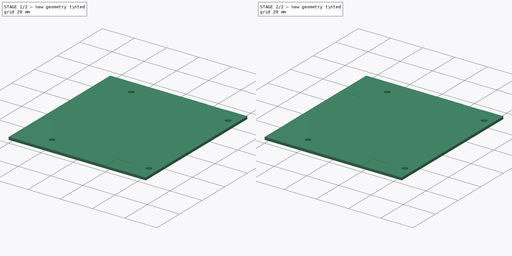
[diagram: build sequence overview — one tinted view per stage of 2, left to right]
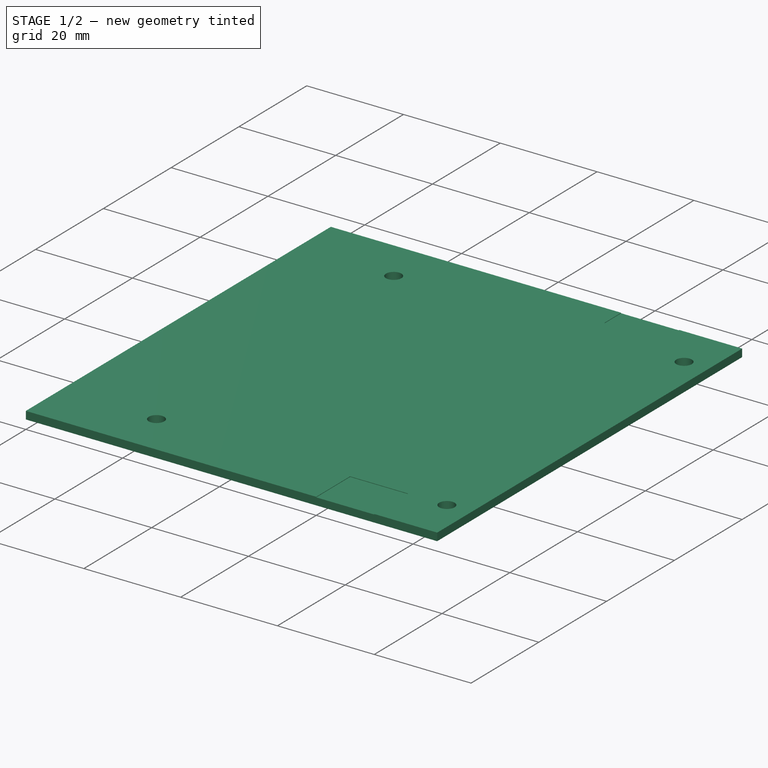
[diagram: stage 1 of 2 — iso view after this stage's code; geometry added in this stage tinted green]
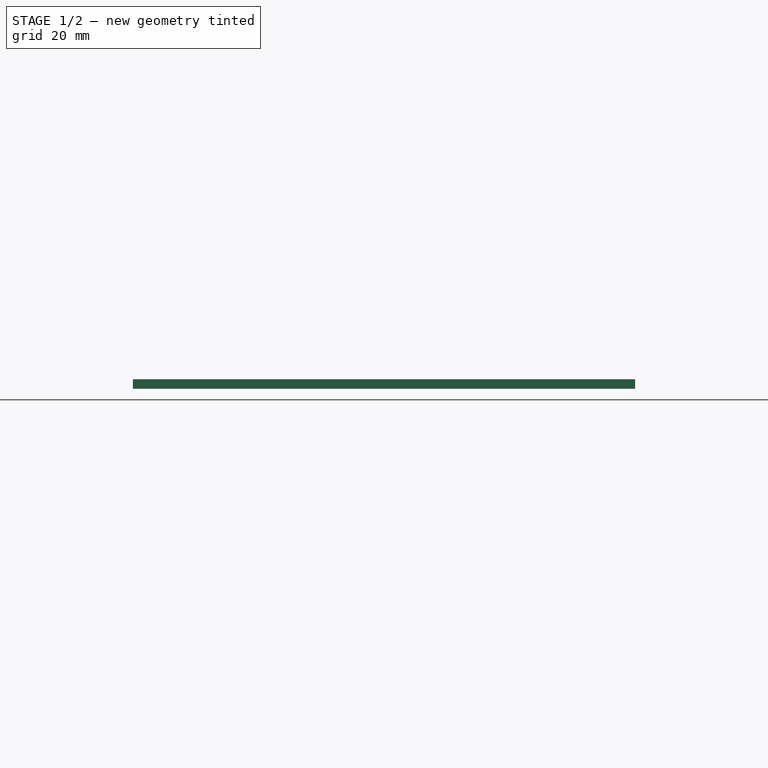
[diagram: stage 1 of 2 — front view after this stage's code; geometry added in this stage tinted green]
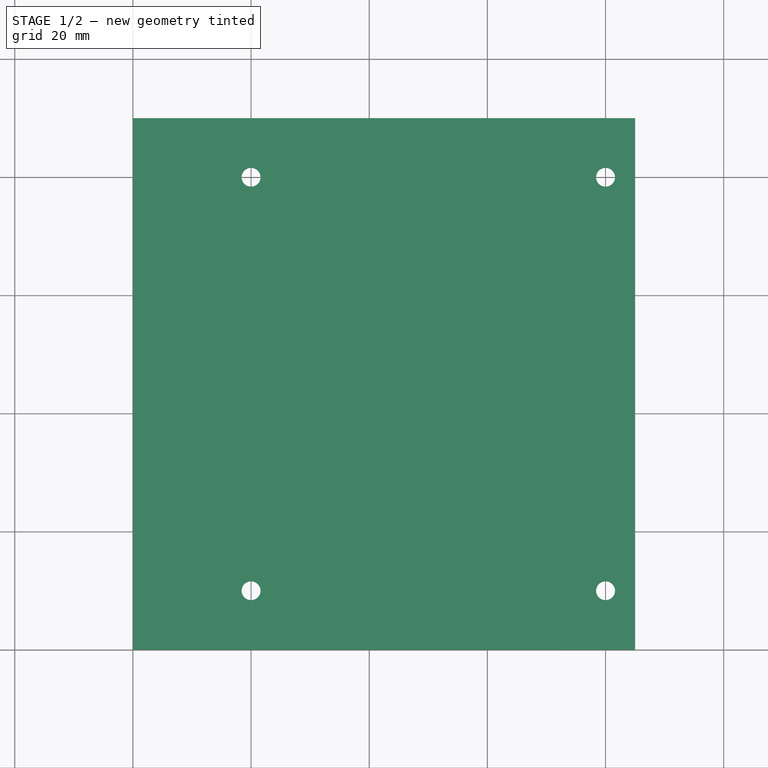
[diagram: stage 1 of 2 — top view after this stage's code; geometry added in this stage tinted green]
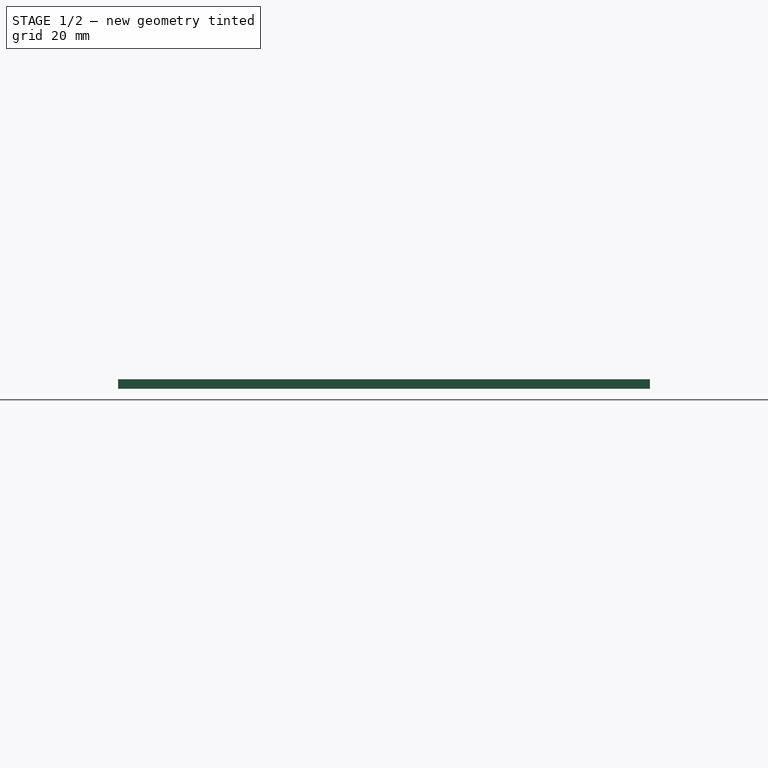
[diagram: stage 1 of 2 — right view after this stage's code; geometry added in this stage tinted green]
FCSTD DOCUMENT  (FreeCAD 0.20R29603 (Git))
Label: 2
License: All rights reserved
LicenseURL: http://en.wikipedia.org/wiki/All_rights_reserved
objects: Sketcher::SketchObject×3, PartDesign::Pocket×2, PartDesign::Pad×1, PartDesign::Body×1, App::Part×1
note: 10 computed .brp shape members not serialized (recipe doc carries the construction recipe); baked Part::Feature solids carry a one-line shape summary decoded from their .brp

FEATURE [Sketcher::SketchObject] Sketch
  FullyConstrained = true
  MapMode = 5
  Support = -> [XY_Plane001]
  sketch-geometry (8):
    g0: LineSegment StartX=0 StartY=0 StartZ=0 EndX=85 EndY=0 EndZ=0
    g1: LineSegment StartX=85 StartY=0 StartZ=0 EndX=85 EndY=90 EndZ=0
    g2: LineSegment StartX=85 StartY=90 StartZ=0 EndX=0 EndY=90 EndZ=0
    g3: LineSegment StartX=0 StartY=90 StartZ=0 EndX=0 EndY=0 EndZ=0
    g4: Circle CenterX=20 CenterY=80 CenterZ=0 NormalX=0 NormalY=0 NormalZ=1 AngleXU=0 Radius=1.6
    g5: Circle CenterX=20 CenterY=10 CenterZ=0 NormalX=0 NormalY=0 NormalZ=1 AngleXU=0 Radius=1.6
    g6: Circle CenterX=80 CenterY=10 CenterZ=0 NormalX=0 NormalY=0 NormalZ=1 AngleXU=0 Radius=1.6
    g7: Circle CenterX=80 CenterY=80 CenterZ=0 NormalX=0 NormalY=0 NormalZ=1 AngleXU=0 Radius=1.6
  constraints (23):
    c: Coincident(g0,g1)
    c: Coincident(g1,g2)
    c: Coincident(g2,g3)
    c: Coincident(g3,g0)
    c: Horizontal(g0)
    c: Horizontal(g2)
    c: Vertical(g1)
    c: Vertical(g3)
    c: DistanceY(g3,g3) = 90
    c: DistanceX(g2,g2) = 85
    c: Coincident(g0,g-1)
    c: Radius(g7) = 1.6
    c: Radius(g4) = 1.6
    c: Radius(g5) = 1.6
    c: Radius(g6) = 1.6
    c: Distance(g5,g0) = 10
    c: Distance(g6,g0) = 10
    c: Distance(g6,g1) = 5
    c: Distance(g7,g1) = 5
    c: Distance(g7,g2) = 10
    c: Distance(g4,g2) = 10
    c: Distance(g4,g3) = 20
    c: Distance(g5,g3) = 20
FEATURE [PartDesign::Pad] Pad
  AllowMultiFace = false
  Direction = (0,0,1)
  Length = 1.6
  Length2 = 100
  Profile = -> Sketch
  Type = 0
FEATURE [Sketcher::SketchObject] Sketch001
  FullyConstrained = false
  MapMode = 5
  Placement = pos=(0,0,1.6) rot=(0,0,1;0rad)
  Support = -> [Pad]
  sketch-geometry (4):
    g0: LineSegment StartX=12.0199 StartY=19.2308 StartZ=0 EndX=0.0199282 EndY=19.2308 EndZ=0
    g1: LineSegment StartX=0.0199282 StartY=19.2308 StartZ=0 EndX=0.0199282 EndY=67.2308 EndZ=0
    g2: LineSegment StartX=0.0199282 StartY=67.2308 StartZ=0 EndX=12.0199 EndY=67.2308 EndZ=0
    g3: LineSegment StartX=12.0199 StartY=67.2308 StartZ=0 EndX=12.0199 EndY=19.2308 EndZ=0
  constraints (10):
    c: Coincident(g0,g1)
    c: Coincident(g1,g2)
    c: Coincident(g2,g3)
    c: Coincident(g3,g0)
    c: Horizontal(g0)
    c: Horizontal(g2)
    c: Vertical(g1)
    c: Vertical(g3)
    c: DistanceX(g2,g2) = 12
    c: DistanceY(g1,g1) = 48
FEATURE [Sketcher::SketchObject] Sketch002
  FullyConstrained = true
  MapMode = 5
  Placement = pos=(0,0,1.6) rot=(0,0,1;0rad)
  sketch-geometry (8):
    g0: LineSegment StartX=60 StartY=97 StartZ=0 EndX=72 EndY=97 EndZ=0
    g1: LineSegment StartX=72 StartY=97 StartZ=0 EndX=72 EndY=85 EndZ=0
    g2: LineSegment StartX=72 StartY=85 StartZ=0 EndX=60 EndY=85 EndZ=0
    g3: LineSegment StartX=60 StartY=85 StartZ=0 EndX=60 EndY=97 EndZ=0
    g4: LineSegment StartX=60 StartY=10 StartZ=0 EndX=72 EndY=10 EndZ=0
    g5: LineSegment StartX=72 StartY=10 StartZ=0 EndX=72 EndY=0 EndZ=0
    g6: LineSegment StartX=72 StartY=0 StartZ=0 EndX=60 EndY=0 EndZ=0
    g7: LineSegment StartX=60 StartY=0 StartZ=0 EndX=60 EndY=10 EndZ=0
  constraints (24):
    c: Coincident(g0,g1)
    c: Coincident(g1,g2)
    c: Coincident(g2,g3)
    c: Coincident(g3,g0)
    c: Horizontal(g0)
    c: Horizontal(g2)
    c: Vertical(g1)
    c: Vertical(g3)
    c: Coincident(g4,g5)
    c: Coincident(g5,g6)
    c: Coincident(g6,g7)
    c: Coincident(g7,g4)
    c: Horizontal(g4)
    c: Horizontal(g6)
    c: Vertical(g5)
    c: Vertical(g7)
    c: DistanceY(g3,g3) = 12
    c: DistanceY(g7,g7) = 10
    c: DistanceX(g0,g0) = 12
    c: DistanceX(g4,g4) = 12
    c: DistanceY(g-1,g2) = 85
    c: DistanceX(g-2,g2) = 60
    c: DistanceX(g-2,g6) = 60
    c: DistanceY(g-1,g6) = 0
FEATURE [PartDesign::Pocket] Pocket
  BaseFeature = -> Pad
  Direction = (0,0,-1)
  Length = 0.1
  Length2 = 5
  Profile = -> Sketch002
  ReferenceAxis = -> Sketch002 [N_Axis]
  Type = 0
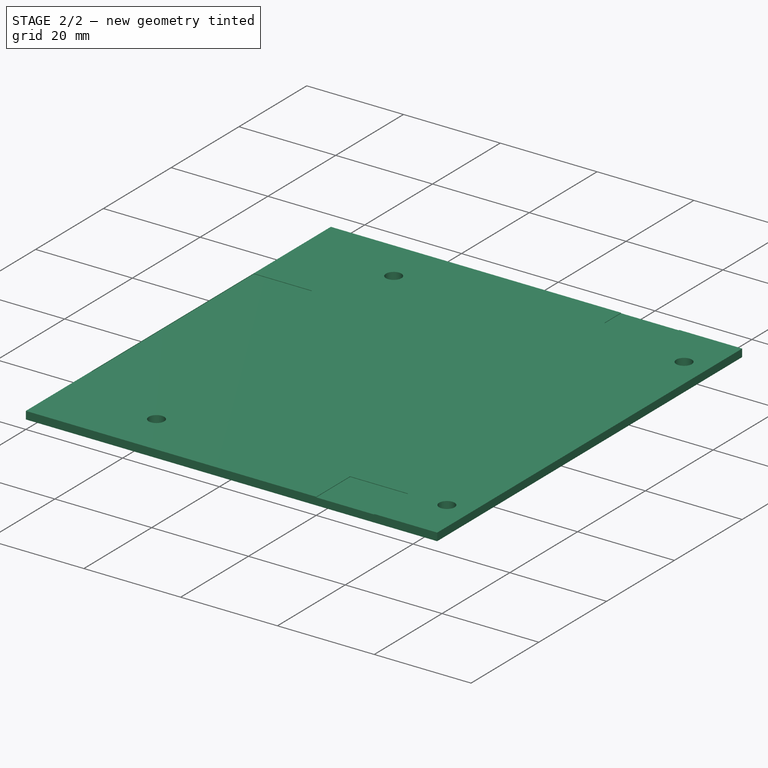
[diagram: stage 2 of 2 — iso view after this stage's code; geometry added in this stage tinted green]
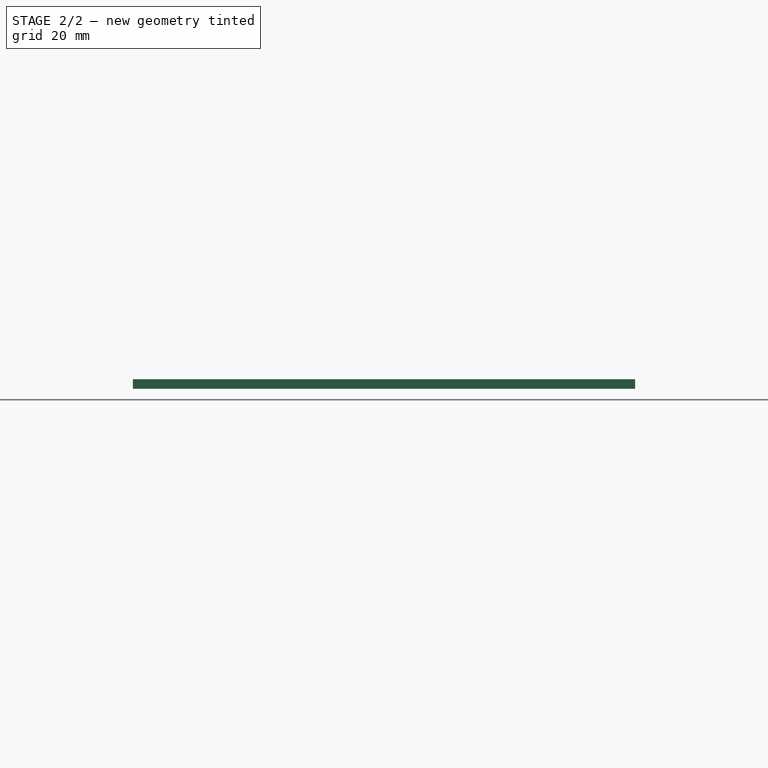
[diagram: stage 2 of 2 — front view after this stage's code; geometry added in this stage tinted green]
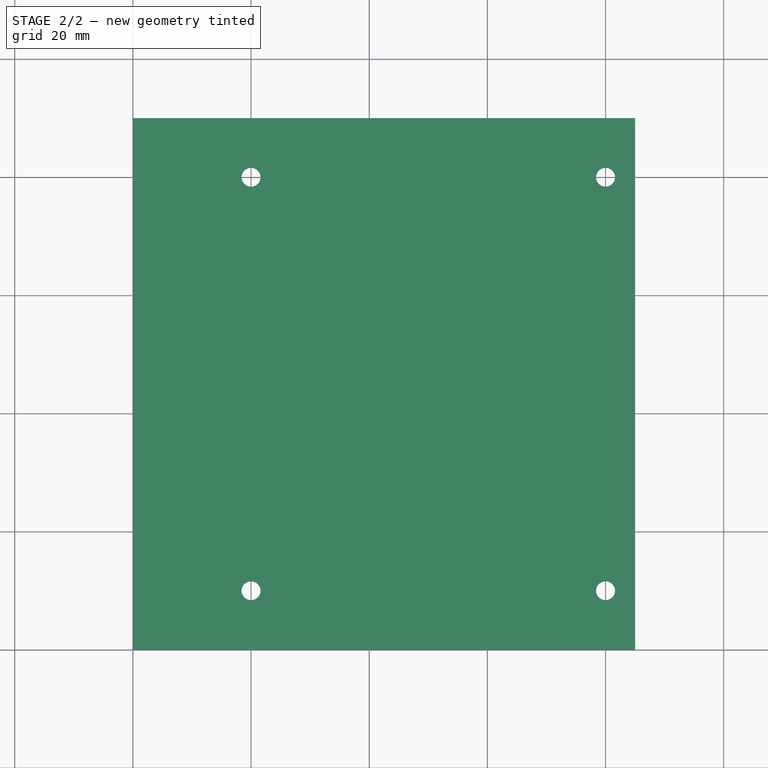
[diagram: stage 2 of 2 — top view after this stage's code; geometry added in this stage tinted green]
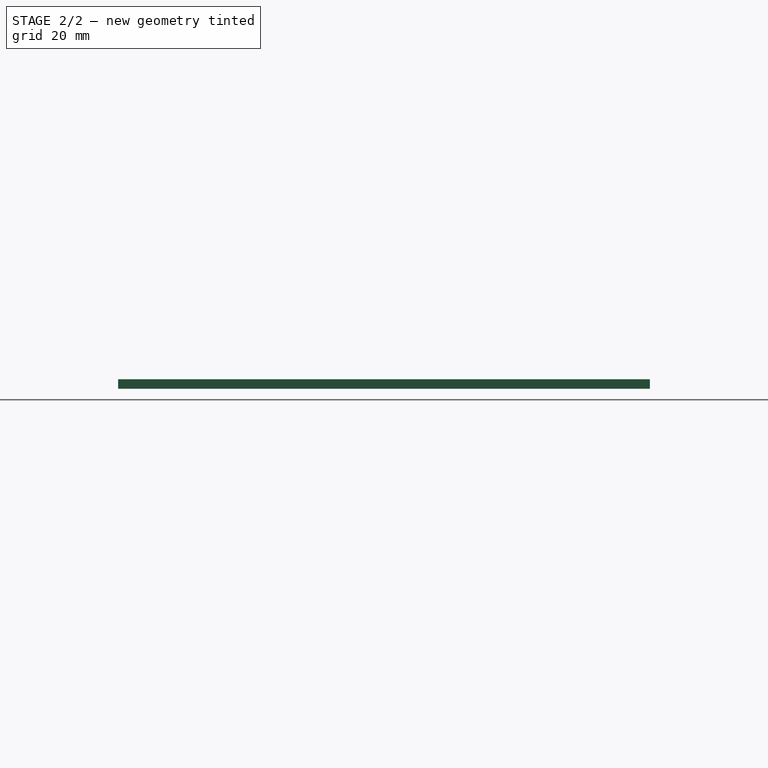
[diagram: stage 2 of 2 — right view after this stage's code; geometry added in this stage tinted green]
FEATURE [PartDesign::Pocket] Pocket001
  BaseFeature = -> Pocket
  Direction = (0,0,-1)
  Length = 0.1
  Length2 = 5
  Profile = -> Sketch001
  ReferenceAxis = -> Sketch001 [N_Axis]
  Type = 0
FEATURE [PartDesign::Body] Body
  Group = -> [Sketch,Pad,Sketch001,Sketch002,Pocket,Pocket001]
  Origin = -> Origin001
  Tip = -> Pocket001
FEATURE [App::Part] Part
  Group = -> [Body]
  Origin = -> Origin
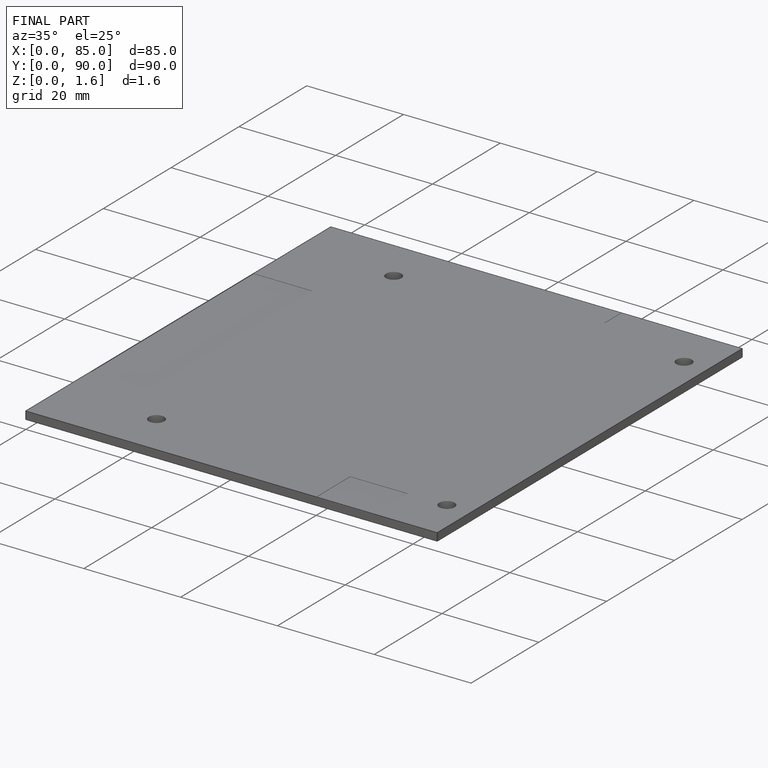
[diagram: finished part — iso view with bounding-box wireframe]
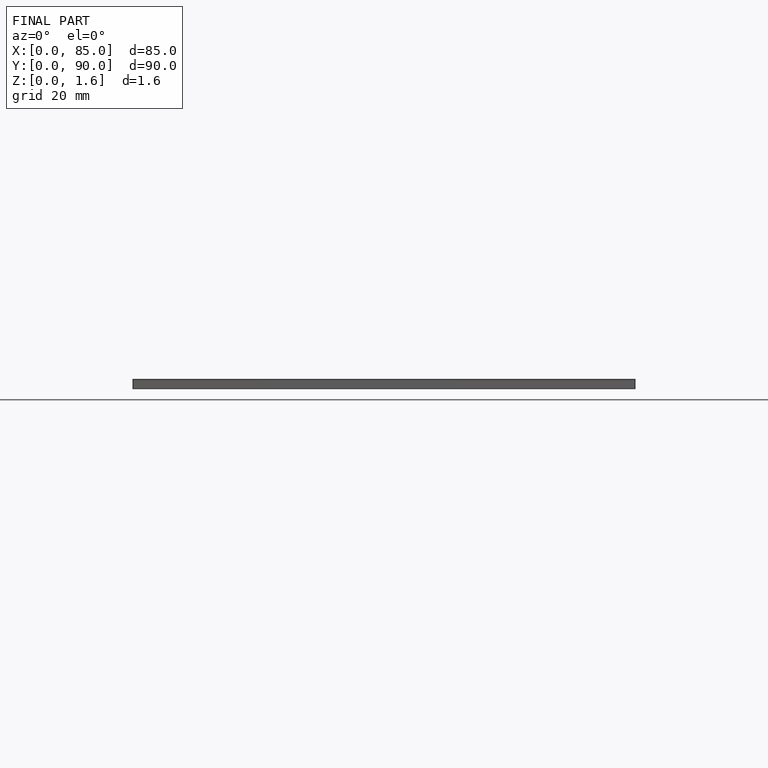
[diagram: finished part — front view with bounding-box wireframe]
